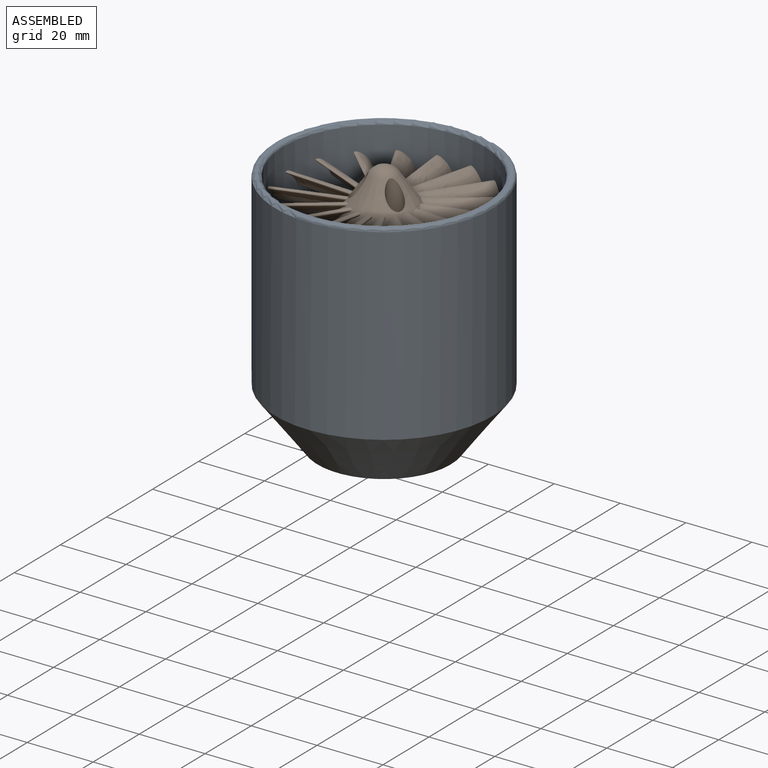
[diagram: assembled view]
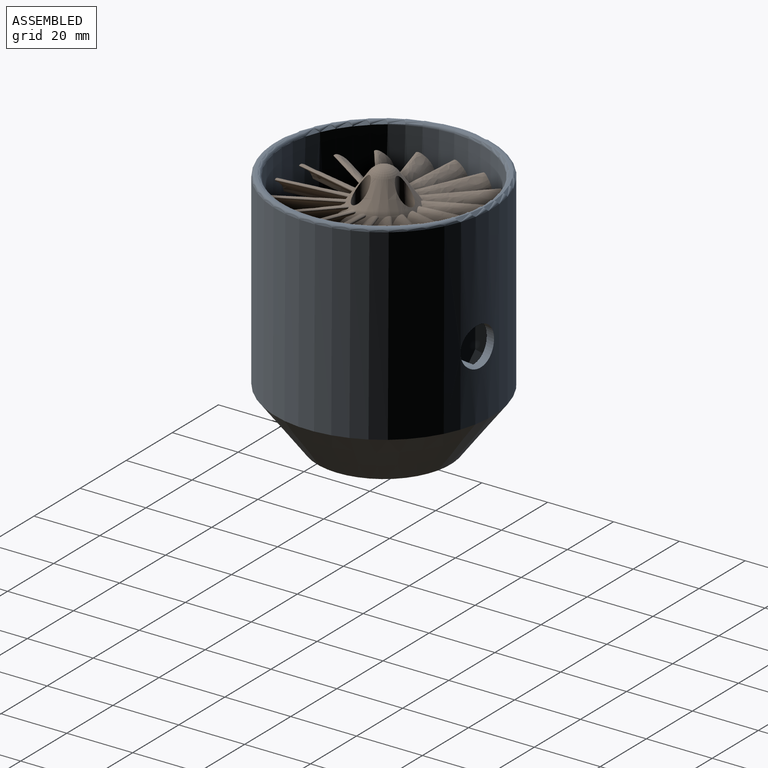
[diagram: assembled view, second angle]
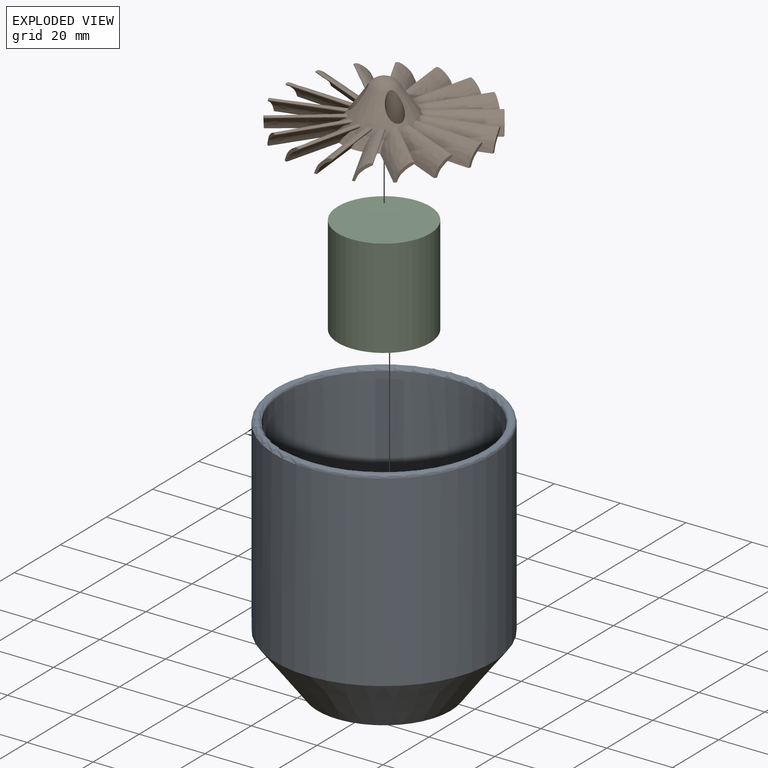
[diagram: exploded view]
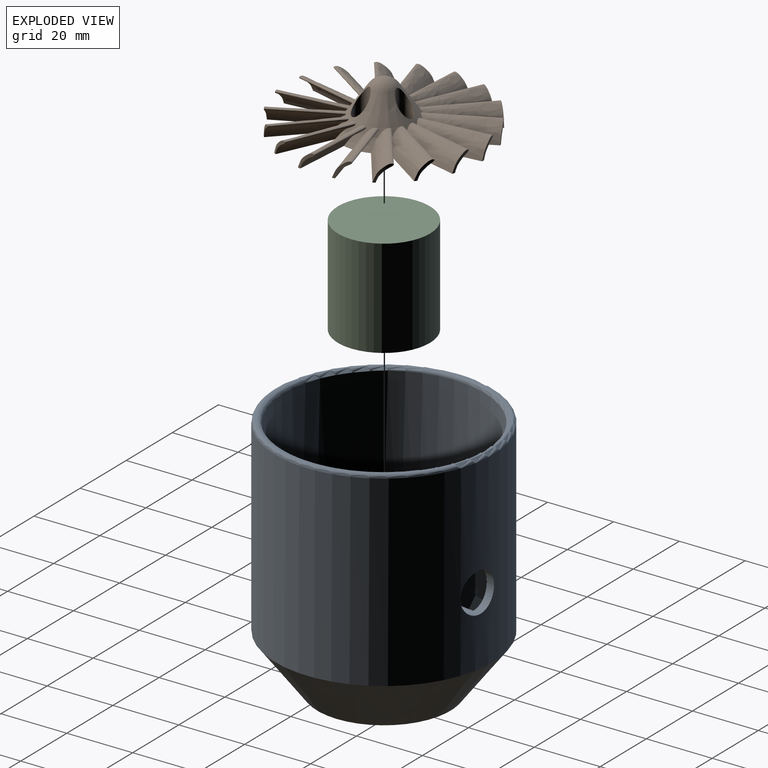
[diagram: exploded view, second angle]
ASSEMBLY  parts=3 mates=2
PART A: 45 faces, bbox 72.1x72.1x75.3 mm
  f0: plane 30.39x26.2mm, normal (0.16,0.99,0), area 620.8mm2, adj f11,f15,f19,f21,f38,f43
  f1: plane 30.39x26.2mm, normal (-0.16,-0.99,0), area 620.8mm2, adj f10,f14,f18,f21,f38,f43
  f2: plane 30.39x26.2mm, normal (-0.99,0.16,0), area 620.8mm2, adj f10,f14,f18,f21,f39,f43
  f3: plane 30.39x26.2mm, normal (0.99,-0.16,0), area 620.8mm2, adj f9,f13,f17,f21,f39,f43
  f4: plane 30.39x26.2mm, normal (-0.16,-0.99,0), area 620.8mm2, adj f9,f13,f17,f21,f40,f43
  f5: plane 30.39x26.2mm, normal (0.16,0.99,0), area 620.8mm2, adj f8,f12,f16,f21,f40,f43
  f6: plane 30.39x26.2mm, normal (-0.99,0.16,0), area 620.8mm2, adj f11,f15,f19,f21,f41,f43
  f7: plane 30.39x26.2mm, normal (0.99,-0.16,0), area 620.8mm2, adj f8,f12,f16,f21,f41,f43
  f8: cylinder r=5mm len=16.7mm, axis (0,0,1), area 62.4mm2, adj f5,f7,f16,f43
  f9: cylinder r=5mm len=16.7mm, axis (0,0,1), area 62.4mm2, adj f3,f4,f17,f43
  f10: cylinder r=5mm len=16.7mm, axis (0,0,1), area 62.4mm2, adj f1,f2,f18,f43
  f11: cylinder r=5mm len=16.7mm, axis (0,0,1), area 62.4mm2, adj f0,f6,f19,f43
  f12: cone r=30.5mm half-angle=37.3deg, axis (0,0,1), area 707.7mm2, adj f5,f7,f21,f43
  f13: cone r=30.5mm half-angle=37.3deg, axis (0,0,1), area 707.7mm2, adj f3,f4,f21,f43
  f14: cone r=30.5mm half-angle=37.3deg, axis (0,0,1), area 707.7mm2, adj f1,f2,f21,f43
  f15: cone r=30.5mm half-angle=37.3deg, axis (0,0,1), area 707.7mm2, adj f0,f6,f21,f43
  f16: cone r=11.8mm half-angle=24.4deg, axis (0,0,1), area 103.7mm2, adj f5,f7,f8,f20,f30,f31,f32,f40
  f17: cone r=11.8mm half-angle=24.4deg, axis (0,0,1), area 94.5mm2, adj f3,f4,f9,f20,f28,f39,f40
  f18: cone r=11.8mm half-angle=24.4deg, axis (0,0,1), area 103.7mm2, adj f1,f2,f10,f20,f26,f27,f34,f38
  f19: cone r=11.8mm half-angle=24.4deg, axis (0,0,1), area 94.5mm2, adj f0,f6,f11,f20,f24,f38,f41
  f20: plane 23.6x23.6mm, normal (0,0,1), area 405.3mm2, adj f16,f17,f18,f19,f32,f33,f34,f35
  f21: cylinder r=30.5mm len=61mm, axis (0,0,-1), area 10567mm2, adj f0,f1,f2,f3,f4,f5,f6,f7
  f22: cylinder r=33mm len=66mm, axis (0,0,-1), area 11695.5mm2, adj f37,f42,f44
  f23: plane 64x64mm, normal (0,0,1), area 99.7mm2, adj f36,f37
  f24: cylinder r=2.6mm len=12.36mm, axis (0,0,-1), area 100.5mm2, adj f19,f25
  f25: plane 5.2x5.2mm, normal (0,0,-1), area 13.2mm2, adj f24,f35
  f26: cylinder r=2.6mm len=8.95mm, axis (0,0,-1), area 55.4mm2, adj f18,f27
  f27: plane 5.2x4.81mm, normal (0,0,-1), area 9.5mm2, adj f18,f26,f34
  f28: cylinder r=2.6mm len=12.36mm, axis (0,0,-1), area 100.5mm2, adj f17,f29
  f29: plane 5.2x5.2mm, normal (0,0,-1), area 13.2mm2, adj f28,f33
  f30: cylinder r=2.6mm len=8.95mm, axis (0,0,-1), area 55.4mm2, adj f16,f31
  f31: plane 5.2x4.81mm, normal (0,0,-1), area 9.5mm2, adj f16,f30,f32
  f32: cylinder r=1.6mm len=3.2mm, axis (0,0,1), area 19.8mm2, adj f16,f20,f31
  f33: cylinder r=1.6mm len=3.2mm, axis (0,0,1), area 20.1mm2, adj f20,f29
  f34: cylinder r=1.6mm len=3.2mm, axis (0,0,1), area 20.1mm2, adj f18,f20,f27
  f35: cylinder r=1.6mm len=3.2mm, axis (0,0,1), area 20.1mm2, adj f20,f25
  f36: torus R=31.5mm, axis (0,0,1), area 304.6mm2, adj f21,f23
  f37: torus R=32mm, axis (0,0,1), area 322.1mm2, adj f22,f23
  f38: cylinder r=2mm len=20.18mm, axis (0.99,-0.16,0), area 120.7mm2, adj f0,f1,f18,f19,f21
  f39: cylinder r=2mm len=20.18mm, axis (0.16,0.99,0), area 119.9mm2, adj f2,f3,f17,f18,f21,f42
  f40: cylinder r=2mm len=20.18mm, axis (-0.99,0.16,0), area 120.7mm2, adj f4,f5,f16,f17,f21
  f41: cylinder r=2mm len=20.18mm, axis (0.16,0.99,0), area 120.7mm2, adj f6,f7,f16,f19,f21
  f42: cylinder r=6mm len=12.35mm, axis (0.16,0.99,0), area 95.1mm2, adj f21,f22,f39
  f43: plane 40.53x40.53mm, normal (0,0,-1), area 583mm2, adj f0,f1,f2,f3,f4,f5,f6,f7
  f44: cone r=20.26mm half-angle=37.3deg, axis (0,0,1), area 3513.9mm2, adj f22,f43
PART B: 55 faces, bbox 60.9x60x15 mm
  f0: bspline ~30x8.61mm, area 288.7mm2, adj f1,f48,f54
  f1: cone r=13mm half-angle=35deg, axis (0,0,-1), area 551.2mm2, adj f0,f2,f5,f7,f9,f11,f13,f15
  f2: cylinder r=2.5mm len=9.45mm, axis (0,0,-1), area 87.8mm2, adj f1,f3,f43
  f3: plane 5x5mm, normal (0,0,1), area 12.6mm2, adj f2,f4
  f4: cylinder r=1.5mm len=3.5mm, axis (0,0,-1), area 33mm2, adj f3,f48
  f5: bspline ~30.29x16.79mm, area 288.7mm2, adj f1,f6,f48
  f6: cylinder r=30mm len=5.24mm, axis (0,0,-1), area 6.1mm2, adj f5,f48
  f7: bspline ~25.88x24.31mm, area 288.7mm2, adj f1,f8,f48
  f8: cylinder r=30mm len=5.24mm, axis (0,0,-1), area 6.1mm2, adj f7,f48
  f9: bspline ~28.9x18.35mm, area 288.7mm2, adj f1,f10,f48
  f10: cylinder r=30mm len=5.24mm, axis (0,0,-1), area 6.1mm2, adj f9,f48
  f11: bspline ~30x8.61mm, area 288.7mm2, adj f1,f12,f48
  f12: cylinder r=30mm len=5.35mm, axis (0,0,-1), area 6.1mm2, adj f11,f48
  f13: bspline ~31.14x12.2mm, area 288.7mm2, adj f1,f14,f48
  f14: cylinder r=30mm len=5.24mm, axis (0,0,-1), area 6.1mm2, adj f13,f48
  f15: bspline ~28.52x20.87mm, area 288.7mm2, adj f1,f16,f48
  f16: cylinder r=30mm len=5.24mm, axis (0,0,-1), area 6.1mm2, adj f15,f48
  f17: bspline ~27.01x22.46mm, area 288.7mm2, adj f1,f18,f48
  f18: cylinder r=30mm len=5.24mm, axis (0,0,-1), area 6.1mm2, adj f17,f48
  f19: bspline ~29.9x13.69mm, area 288.7mm2, adj f1,f20,f48
  f20: cylinder r=30mm len=5.24mm, axis (0,0,-1), area 6.1mm2, adj f19,f48
  f21: bspline ~31.04x7.24mm, area 288.7mm2, adj f1,f22,f48
  f22: cylinder r=30mm len=5.34mm, axis (0,0,-1), area 6.1mm2, adj f21,f48
  f23: bspline ~30.29x16.79mm, area 288.7mm2, adj f1,f24,f48
  f24: cylinder r=30mm len=5.24mm, axis (0,0,-1), area 6.1mm2, adj f23,f48
  f25: bspline ~25.88x24.31mm, area 288.7mm2, adj f1,f26,f48
  f26: cylinder r=30mm len=5.24mm, axis (0,0,-1), area 6.1mm2, adj f25,f48
  f27: bspline ~28.9x18.35mm, area 288.7mm2, adj f1,f28,f48
  f28: cylinder r=30mm len=5.24mm, axis (0,0,-1), area 6.1mm2, adj f27,f48
  f29: bspline ~31.14x12.2mm, area 288.7mm2, adj f1,f30,f48
  f30: cylinder r=30mm len=5.24mm, axis (0,0,-1), area 6.1mm2, adj f29,f48
  f31: bspline ~28.52x20.87mm, area 288.7mm2, adj f1,f32,f48
  f32: cylinder r=30mm len=5.24mm, axis (0,0,-1), area 6.1mm2, adj f31,f48
  f33: bspline ~27.01x22.46mm, area 288.7mm2, adj f1,f34,f48
  f34: cylinder r=30mm len=5.24mm, axis (0,0,-1), area 6.1mm2, adj f33,f48
  f35: bspline ~29.9x13.69mm, area 288.7mm2, adj f1,f36,f48
  f36: cylinder r=30mm len=5.24mm, axis (0,0,-1), area 6.1mm2, adj f35,f48
  f37: cone r=13mm half-angle=35deg, axis (0,0,-1), area 8.1mm2, adj f1,f38,f48
  f38: bspline ~31.04x7.24mm, area 288.7mm2, adj f1,f37,f39,f48
  f39: cylinder r=30mm len=5.34mm, axis (0,0,-1), area 6.1mm2, adj f38,f48
  f40: cylinder r=2.5mm len=9.45mm, axis (0,0,-1), area 87.8mm2, adj f1,f41,f43
  f41: plane 5x5mm, normal (0,0,1), area 12.6mm2, adj f40,f42
  f42: cylinder r=1.5mm len=3.5mm, axis (0,0,-1), area 33mm2, adj f41,f48
  f43: torus R=0mm, axis (0,0,1), area 61.5mm2, adj f1,f2,f40,f44,f45
  f44: plane 0x0mm, normal (0,0,1), area 0mm2, adj f43
  f45: cylinder r=2.5mm len=9.45mm, axis (0,0,-1), area 88.6mm2, adj f1,f43,f46
  f46: plane 5x5mm, normal (0,0,1), area 12.6mm2, adj f45,f47
  f47: cylinder r=1.5mm len=3.5mm, axis (0,0,-1), area 33mm2, adj f46,f48
  f48: plane 60.01x59.29mm, normal (0,0,-1), area 729.4mm2, adj f0,f1,f4,f5,f6,f7,f8,f9
  f49: cylinder r=4.25mm len=8.5mm, axis (0,0,-1), area 53.4mm2, adj f48,f50,f51,f52,f53
  f50: cone r=4.25mm half-angle=45deg, axis (0,0,-1), area 0mm2, adj f49,f52
  f51: cone r=4.25mm half-angle=45deg, axis (0,0,-1), area 0mm2, adj f49,f52
  f52: cone r=4.25mm half-angle=45deg, axis (0,0,-1), area 79.6mm2, adj f49,f50,f51,f53
  f53: cone r=4.25mm half-angle=45deg, axis (0,0,-1), area 0.6mm2, adj f49,f52
  f54: cylinder r=30mm len=5.35mm, axis (0,0,-1), area 6.1mm2, adj f0,f48
PART C: 3 faces, bbox 28x28x30 mm
  f0: cylinder r=14mm len=30mm, axis (0,0,-1), area 2638.9mm2, adj f1,f2
  f1: plane 28x28mm, normal (0,0,1), area 615.8mm2, adj f0
  f2: plane 28x28mm, normal (0,0,-1), area 615.8mm2, adj f0
PLACE A rot(axis=(0,0,-1),180deg) t=(-5.81,-13.84,-0.34)mm
PLACE B rot(axis=(-1,0,0),0deg) t=(-2.46,-7.4,29.66)mm
PLACE C rot(axis=(0,0,1),90deg) t=(-2.46,-7.4,-0.34)mm
MATE fastened A.f8 <-> C.f0  axis (0,0,1) through (-2.46,-7.4,-0.34)mm
MATE revolute C.f0 <-> B.f1  axis (0,0,1) through (-2.46,-7.4,29.66)mm
